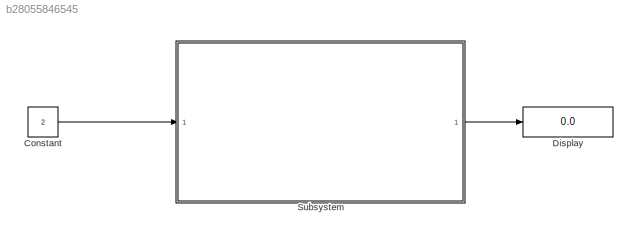
MODEL slx_b28055846545
KIND model
CONFIG AbsTol = auto
CONFIG EnableMultiTasking = off
CONFIG FixedStep = auto
CONFIG MaxStep = auto
CONFIG MinStep = auto
CONFIG RelTol = 1e-3
CONFIG SampleTimeConstraint = Unconstrained
CONFIG SolverName = VariableStepAuto
CONFIG StartTime = 0.0
CONFIG StopTime = 10.0
BLOCK [Constant] Constant
  Value = 2
BLOCK [Display] Display
  Decimation = 1
  Ports = [1]
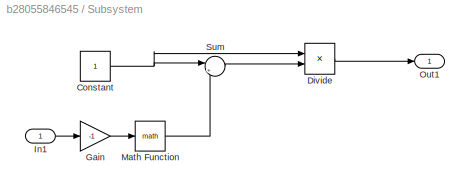
BLOCK [SubSystem] Subsystem
  Ports = [1, 1]
  RequestExecContextInheritance = off
BLOCK [Constant] Subsystem/Constant
BLOCK [Product] Subsystem/Divide
  Inputs = */
  Ports = [2, 1]
BLOCK [Gain] Subsystem/Gain
  Gain = -1
BLOCK [Inport] Subsystem/In1
BLOCK [Math] Subsystem/Math Function
  Ports = [1, 1]
BLOCK [Outport] Subsystem/Out1
BLOCK [Sum] Subsystem/Sum
  Inputs = |++
  Ports = [2, 1]
LINE Constant:1 -> Subsystem:1
NET Subsystem/Constant:1 -> Subsystem/Divide:1, Subsystem/Sum:1
LINE Subsystem/Divide:1 -> Subsystem/Out1:1
LINE Subsystem/Gain:1 -> Subsystem/Math Function:1
LINE Subsystem/In1:1 -> Subsystem/Gain:1
LINE Subsystem/Math Function:1 -> Subsystem/Sum:2
LINE Subsystem/Sum:1 -> Subsystem/Divide:2
LINE Subsystem:1 -> Display:1
note: NET lines group one-source signal fan-out (src -> all destinations, sorted); 1:1 wires keep LINE
